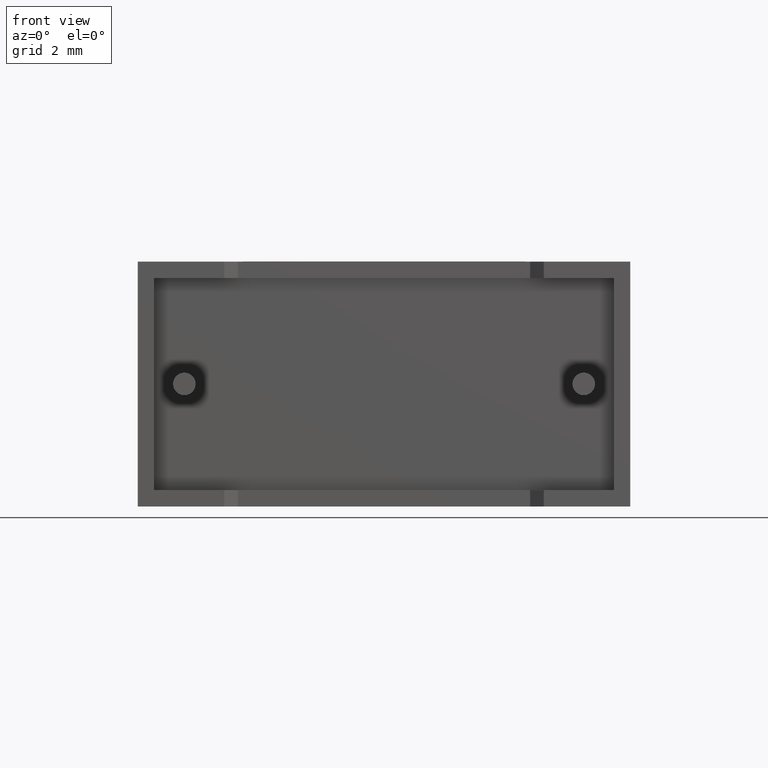
[diagram: clean part render]
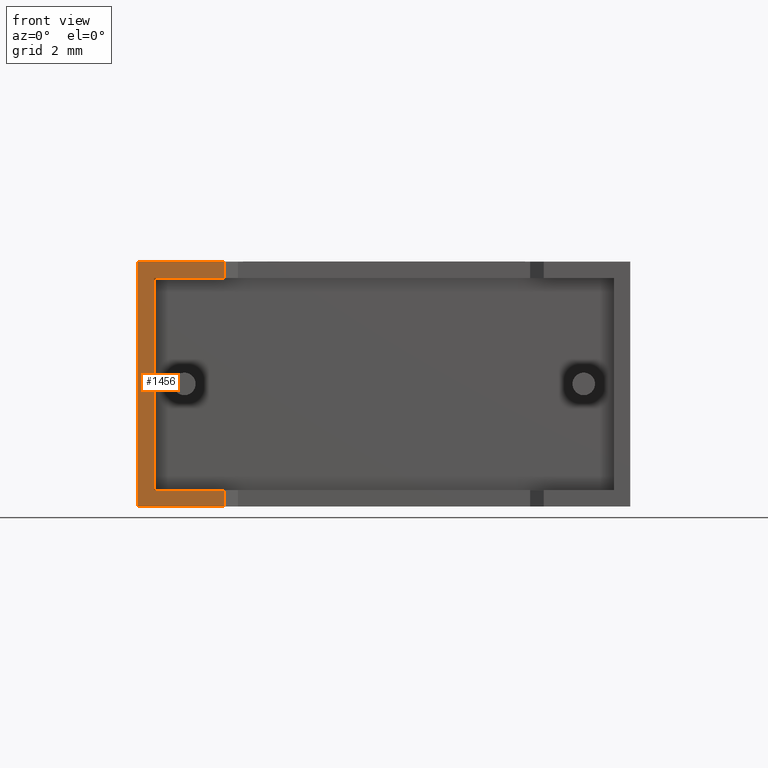
[diagram: same view with one face highlighted and labeled with its STEP entity id]
A machine part, front view. The second image highlights one B-rep face of the part: STEP entity #1456.
In plain terms, the highlighted planar face has unit normal (0, 1, 0).
Its self-contained STEP definition (entity closure, byte-faithful):
#5 = LINE ( 'NONE', #1153, #758 ) ;
#41 = ORIENTED_EDGE ( 'NONE', *, *, #1793, .F. ) ;
#90 = VERTEX_POINT ( 'NONE', #2911 ) ;
#107 = CARTESIAN_POINT ( 'NONE',  ( 0.000000000000000000, 0.000000000000000000, 0.000000000000000000 ) ) ;
#151 = VERTEX_POINT ( 'NONE', #849 ) ;
#156 = VECTOR ( 'NONE', #1697, 1000.000000000000000 ) ;
#228 = ORIENTED_EDGE ( 'NONE', *, *, #1272, .T. ) ;
#231 = LINE ( 'NONE', #2349, #1338 ) ;
#275 = DIRECTION ( 'NONE',  ( -1.000000000000000000, 0.000000000000000000, -1.004666098601887175E-16 ) ) ;
#293 = DIRECTION ( 'NONE',  ( -0.000000000000000000, -0.000000000000000000, 1.000000000000000000 ) ) ;
#309 = ORIENTED_EDGE ( 'NONE', *, *, #3056, .T. ) ;
#357 = VECTOR ( 'NONE', #275, 1000.000000000000000 ) ;
#454 = VERTEX_POINT ( 'NONE', #1078 ) ;
#502 = VECTOR ( 'NONE', #1536, 1000.000000000000000 ) ;
#555 = VECTOR ( 'NONE', #2869, 1000.000000000000000 ) ;
#652 = DIRECTION ( 'NONE',  ( 0.000000000000000000, -0.000000000000000000, 1.000000000000000000 ) ) ;
#758 = VECTOR ( 'NONE', #961, 1000.000000000000000 ) ;
#806 = VECTOR ( 'NONE', #293, 1000.000000000000000 ) ;
#809 = LINE ( 'NONE', #2409, #806 ) ;
#849 = CARTESIAN_POINT ( 'NONE',  ( 0.6166666049999998123, 0.000000000000000000, 8.583333394999998589 ) ) ;
#961 = DIRECTION ( 'NONE',  ( 1.000000000000000000, 0.000000000000000000, 0.000000000000000000 ) ) ;
#970 = EDGE_CURVE ( 'NONE', #1978, #1914, #1025, .T. ) ;
#1025 = LINE ( 'NONE', #2735, #1120 ) ;
#1078 = CARTESIAN_POINT ( 'NONE',  ( 3.250000000000000444, 1.990051048614448376E-16, 9.199999999999999289 ) ) ;
#1105 = ORIENTED_EDGE ( 'NONE', *, *, #2152, .T. ) ;
#1120 = VECTOR ( 'NONE', #2456, 1000.000000000000000 ) ;
#1153 = CARTESIAN_POINT ( 'NONE',  ( 0.000000000000000000, 0.000000000000000000, 0.000000000000000000 ) ) ;
#1156 = DIRECTION ( 'NONE',  ( -0.000000000000000000, -0.000000000000000000, 1.000000000000000000 ) ) ;
#1201 = LINE ( 'NONE', #2652, #555 ) ;
#1218 = EDGE_CURVE ( 'NONE', #2479, #2110, #5, .T. ) ;
#1272 = EDGE_CURVE ( 'NONE', #90, #2479, #1905, .T. ) ;
#1301 = CARTESIAN_POINT ( 'NONE',  ( 3.250000000000000444, 1.990051048614448376E-16, 0.6166666050000000343 ) ) ;
#1326 = LINE ( 'NONE', #2909, #156 ) ;
#1338 = VECTOR ( 'NONE', #1156, 1000.000000000000000 ) ;
#1456 = ADVANCED_FACE ( 'NONE', ( #1597 ), #2050, .F. ) ;
#1466 = VERTEX_POINT ( 'NONE', #1580 ) ;
#1481 = CARTESIAN_POINT ( 'NONE',  ( 3.250000000000000444, 1.990051048614448376E-16, 0.000000000000000000 ) ) ;
#1536 = DIRECTION ( 'NONE',  ( -0.000000000000000000, -0.000000000000000000, -1.000000000000000000 ) ) ;
#1580 = CARTESIAN_POINT ( 'NONE',  ( 3.250000000000000444, 1.990051048614448376E-16, 8.583333395000000365 ) ) ;
#1597 = FACE_OUTER_BOUND ( 'NONE', #2046, .T. ) ;
#1697 = DIRECTION ( 'NONE',  ( 1.000000000000000000, 0.000000000000000000, 0.000000000000000000 ) ) ;
#1751 = ORIENTED_EDGE ( 'NONE', *, *, #2078, .F. ) ;
#1793 = EDGE_CURVE ( 'NONE', #1466, #151, #2390, .T. ) ;
#1813 = DIRECTION ( 'NONE',  ( 0.000000000000000000, 1.000000000000000000, 0.000000000000000000 ) ) ;
#1905 = LINE ( 'NONE', #2848, #502 ) ;
#1914 = VERTEX_POINT ( 'NONE', #1301 ) ;
#1978 = VERTEX_POINT ( 'NONE', #3008 ) ;
#2046 = EDGE_LOOP ( 'NONE', ( #2932, #1105, #2777, #2249, #41, #309, #1751, #228 ) ) ;
#2050 = PLANE ( 'NONE',  #2318 ) ;
#2078 = EDGE_CURVE ( 'NONE', #90, #454, #1326, .T. ) ;
#2110 = VERTEX_POINT ( 'NONE', #1481 ) ;
#2152 = EDGE_CURVE ( 'NONE', #2110, #1914, #809, .T. ) ;
#2249 = ORIENTED_EDGE ( 'NONE', *, *, #2822, .F. ) ;
#2318 = AXIS2_PLACEMENT_3D ( 'NONE', #3006, #1813, #652 ) ;
#2349 = CARTESIAN_POINT ( 'NONE',  ( 3.250000000000000444, 1.990051048614448376E-16, 0.000000000000000000 ) ) ;
#2390 = LINE ( 'NONE', #2838, #357 ) ;
#2409 = CARTESIAN_POINT ( 'NONE',  ( 3.250000000000000444, 1.990051048614448376E-16, 0.000000000000000000 ) ) ;
#2456 = DIRECTION ( 'NONE',  ( 1.000000000000000000, 0.000000000000000000, 0.000000000000000000 ) ) ;
#2479 = VERTEX_POINT ( 'NONE', #107 ) ;
#2652 = CARTESIAN_POINT ( 'NONE',  ( 0.6166666049999998123, 0.000000000000000000, 8.583333394999998589 ) ) ;
#2735 = CARTESIAN_POINT ( 'NONE',  ( 0.6166666050000000343, 0.000000000000000000, 0.6166666050000000343 ) ) ;
#2777 = ORIENTED_EDGE ( 'NONE', *, *, #970, .F. ) ;
#2822 = EDGE_CURVE ( 'NONE', #151, #1978, #1201, .T. ) ;
#2838 = CARTESIAN_POINT ( 'NONE',  ( 17.88333339499999752, 0.000000000000000000, 8.583333395000000365 ) ) ;
#2848 = CARTESIAN_POINT ( 'NONE',  ( 0.000000000000000000, 0.000000000000000000, 9.199999999999999289 ) ) ;
#2869 = DIRECTION ( 'NONE',  ( 2.721846415985234513E-17, 0.000000000000000000, -1.000000000000000000 ) ) ;
#2909 = CARTESIAN_POINT ( 'NONE',  ( 0.000000000000000000, 0.000000000000000000, 9.199999999999999289 ) ) ;
#2911 = CARTESIAN_POINT ( 'NONE',  ( 0.000000000000000000, 0.000000000000000000, 9.199999999999999289 ) ) ;
#2932 = ORIENTED_EDGE ( 'NONE', *, *, #1218, .T. ) ;
#3006 = CARTESIAN_POINT ( 'NONE',  ( 0.000000000000000000, 0.000000000000000000, 9.199999999999999289 ) ) ;
#3008 = CARTESIAN_POINT ( 'NONE',  ( 0.6166666050000000343, 0.000000000000000000, 0.6166666049999998123 ) ) ;
#3056 = EDGE_CURVE ( 'NONE', #1466, #454, #231, .T. ) ;